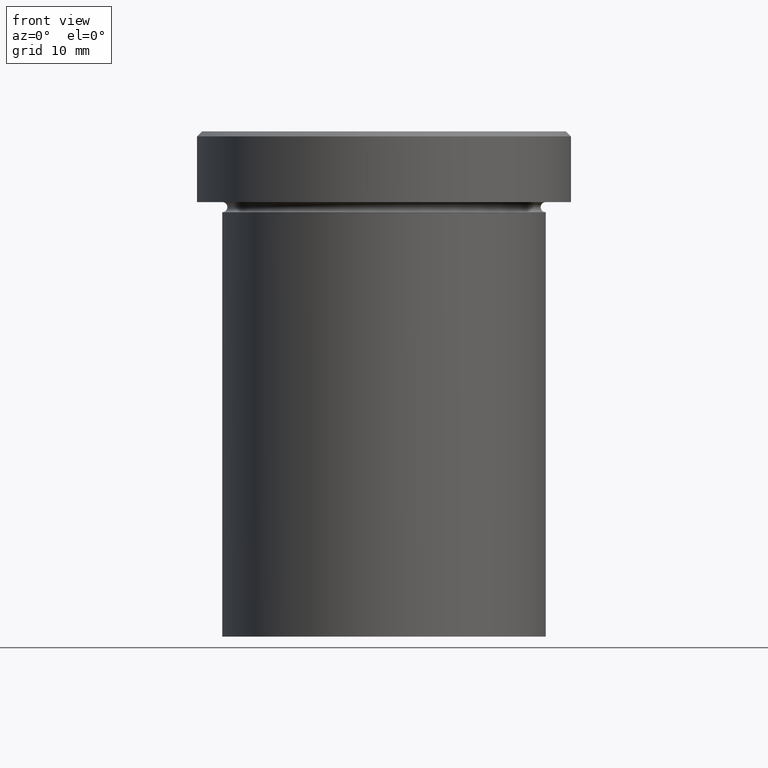
[diagram: clean part render]
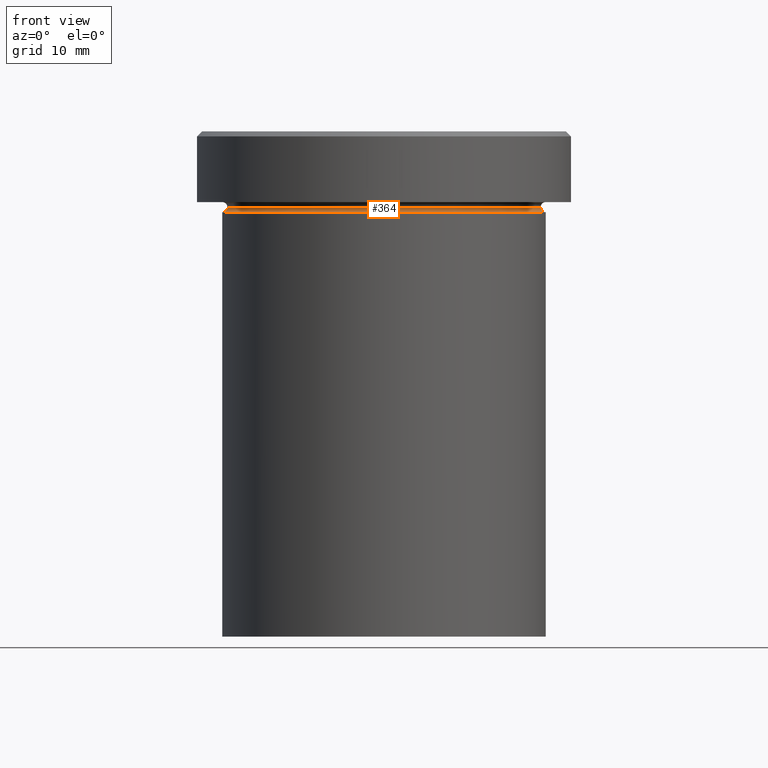
[diagram: same view with one face highlighted and labeled with its STEP entity id]
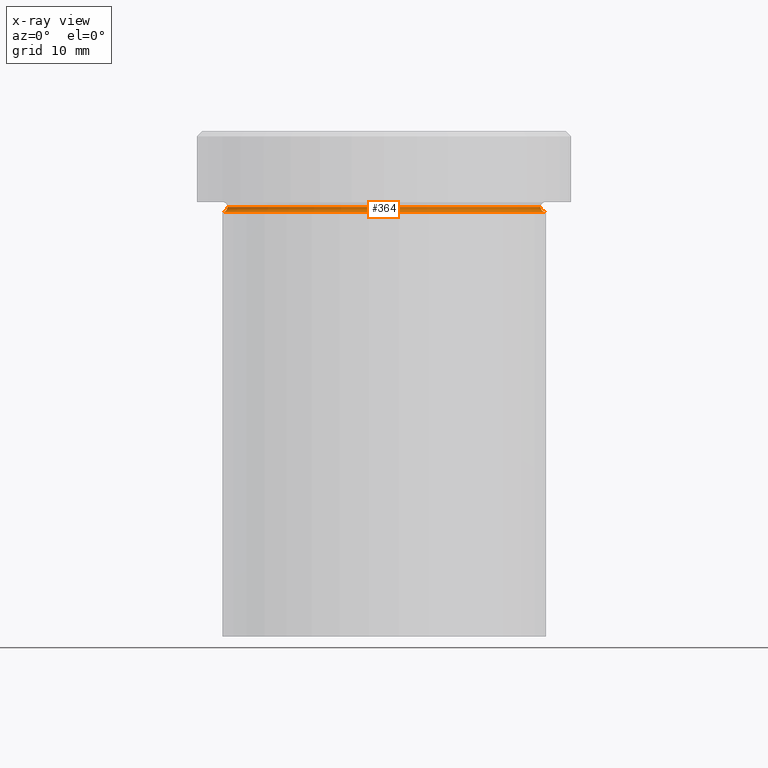
[diagram: x-ray of the same camera — body ghosted, the highlighted face saturated]
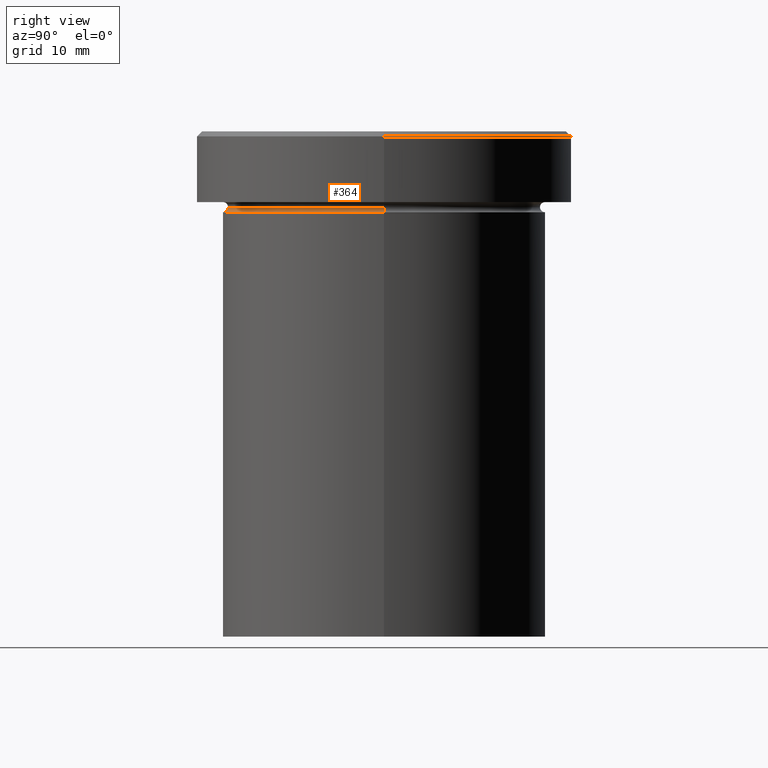
[diagram: same view with one face highlighted and labeled with its STEP entity id]
A machine part, front view. The second image highlights one B-rep face of the part: STEP entity #364.
The next image is the same camera in x-ray: the body ghosted, the highlighted face saturated — about 0% of this face is hidden behind the body in this view.
A second angle (right view) of the same face is appended — the face is thin or edge-on in the first view.
In plain terms, the highlighted toroidal blend (fillet) surface has major radius 16 mm and minor (blend) radius 0.5 mm.
Its self-contained STEP definition (entity closure, byte-faithful):
#10 = CIRCLE ( 'NONE', #334, 15.50000000000000000 ) ;
#13 = CARTESIAN_POINT ( 'NONE',  ( -16.00000000000000000, 1.959434878635765131E-15, -7.500000000000000000 ) ) ;
#18 = CARTESIAN_POINT ( 'NONE',  ( 0.000000000000000000, 0.000000000000000000, -7.500000000000000000 ) ) ;
#24 = CARTESIAN_POINT ( 'NONE',  ( 15.50000000000000000, 0.000000000000000000, -7.500000000000000000 ) ) ;
#38 = CIRCLE ( 'NONE', #149, 16.00000000000000000 ) ;
#44 = ORIENTED_EDGE ( 'NONE', *, *, #76, .F. ) ;
#47 = VERTEX_POINT ( 'NONE', #406 ) ;
#67 = DIRECTION ( 'NONE',  ( -0.000000000000000000, -0.000000000000000000, 1.000000000000000000 ) ) ;
#72 = AXIS2_PLACEMENT_3D ( 'NONE', #18, #403, #274 ) ;
#76 = EDGE_CURVE ( 'NONE', #47, #368, #10, .T. ) ;
#87 = VERTEX_POINT ( 'NONE', #254 ) ;
#90 = ORIENTED_EDGE ( 'NONE', *, *, #172, .T. ) ;
#99 = VERTEX_POINT ( 'NONE', #350 ) ;
#105 = ORIENTED_EDGE ( 'NONE', *, *, #157, .F. ) ;
#106 = DIRECTION ( 'NONE',  ( -1.000000000000000000, 1.224646799147349509E-16, 0.000000000000000000 ) ) ;
#112 = CARTESIAN_POINT ( 'NONE',  ( 16.00000000000000000, 0.000000000000000000, -7.500000000000000000 ) ) ;
#122 = FACE_OUTER_BOUND ( 'NONE', #284, .T. ) ;
#130 = AXIS2_PLACEMENT_3D ( 'NONE', #112, #365, #207 ) ;
#149 = AXIS2_PLACEMENT_3D ( 'NONE', #328, #390, #202 ) ;
#157 = EDGE_CURVE ( 'NONE', #368, #87, #304, .T. ) ;
#172 = EDGE_CURVE ( 'NONE', #99, #87, #38, .T. ) ;
#202 = DIRECTION ( 'NONE',  ( 1.000000000000000000, 0.000000000000000000, 0.000000000000000000 ) ) ;
#203 = AXIS2_PLACEMENT_3D ( 'NONE', #13, #259, #106 ) ;
#207 = DIRECTION ( 'NONE',  ( 0.000000000000000000, 0.000000000000000000, -1.000000000000000000 ) ) ;
#252 = TOROIDAL_SURFACE ( 'NONE', #72, 16.00000000000000000, 0.5000000000000000000 ) ;
#254 = CARTESIAN_POINT ( 'NONE',  ( 16.00000000000000000, 0.000000000000000000, -8.000000000000000000 ) ) ;
#259 = DIRECTION ( 'NONE',  ( 1.224646799147353207E-16, 1.000000000000000000, 0.000000000000000000 ) ) ;
#274 = DIRECTION ( 'NONE',  ( 1.000000000000000000, 0.000000000000000000, 0.000000000000000000 ) ) ;
#284 = EDGE_LOOP ( 'NONE', ( #44, #336, #90, #105 ) ) ;
#291 = CARTESIAN_POINT ( 'NONE',  ( 0.000000000000000000, 0.000000000000000000, -7.500000000000000000 ) ) ;
#304 = CIRCLE ( 'NONE', #130, 0.5000000000000004441 ) ;
#306 = EDGE_CURVE ( 'NONE', #47, #99, #381, .T. ) ;
#328 = CARTESIAN_POINT ( 'NONE',  ( 0.000000000000000000, 0.000000000000000000, -8.000000000000000000 ) ) ;
#334 = AXIS2_PLACEMENT_3D ( 'NONE', #291, #67, #384 ) ;
#336 = ORIENTED_EDGE ( 'NONE', *, *, #306, .T. ) ;
#350 = CARTESIAN_POINT ( 'NONE',  ( -16.00000000000000000, 1.959434878635765131E-15, -8.000000000000000000 ) ) ;
#364 = ADVANCED_FACE ( 'NONE', ( #122 ), #252, .F. ) ;
#365 = DIRECTION ( 'NONE',  ( 0.000000000000000000, -1.000000000000000000, 0.000000000000000000 ) ) ;
#368 = VERTEX_POINT ( 'NONE', #24 ) ;
#381 = CIRCLE ( 'NONE', #203, 0.5000000000000004441 ) ;
#384 = DIRECTION ( 'NONE',  ( 1.000000000000000000, 0.000000000000000000, 0.000000000000000000 ) ) ;
#390 = DIRECTION ( 'NONE',  ( -0.000000000000000000, -0.000000000000000000, 1.000000000000000000 ) ) ;
#403 = DIRECTION ( 'NONE',  ( -0.000000000000000000, -0.000000000000000000, 1.000000000000000000 ) ) ;
#406 = CARTESIAN_POINT ( 'NONE',  ( -15.50000000000000000, 1.928818708657081344E-15, -7.500000000000000000 ) ) ;